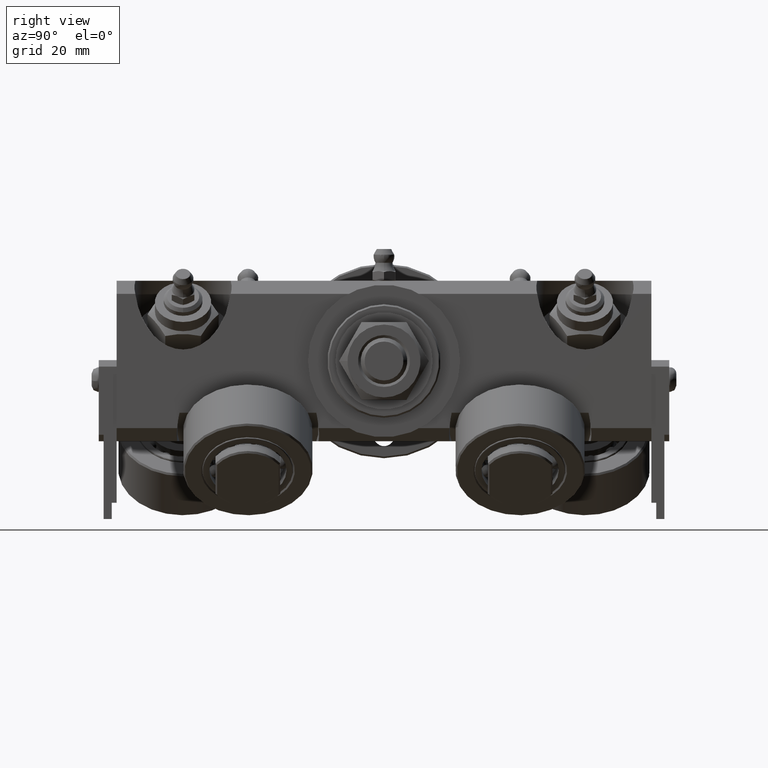
[diagram: clean part render]
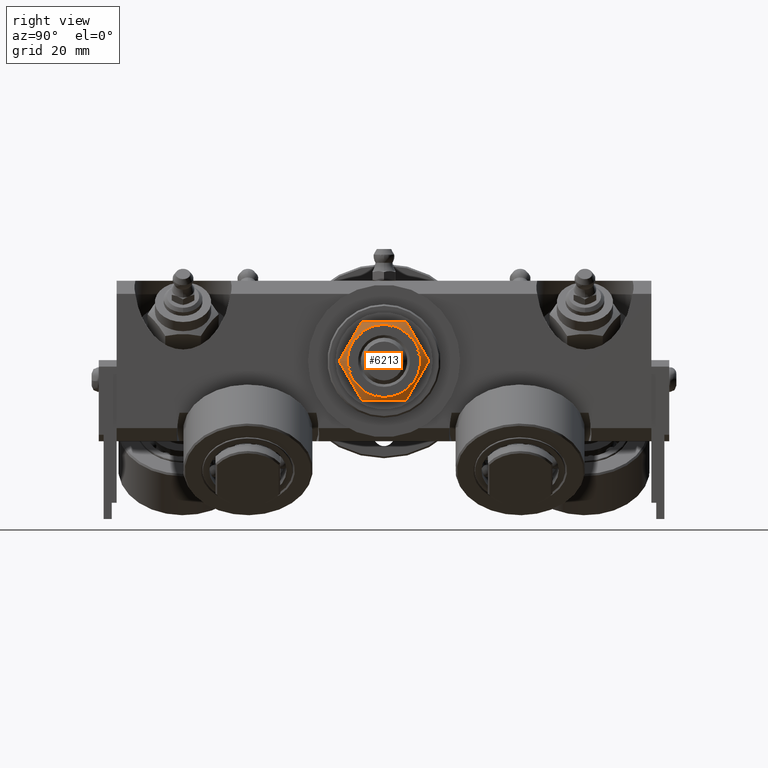
[diagram: same view with one face highlighted and labeled with its STEP entity id]
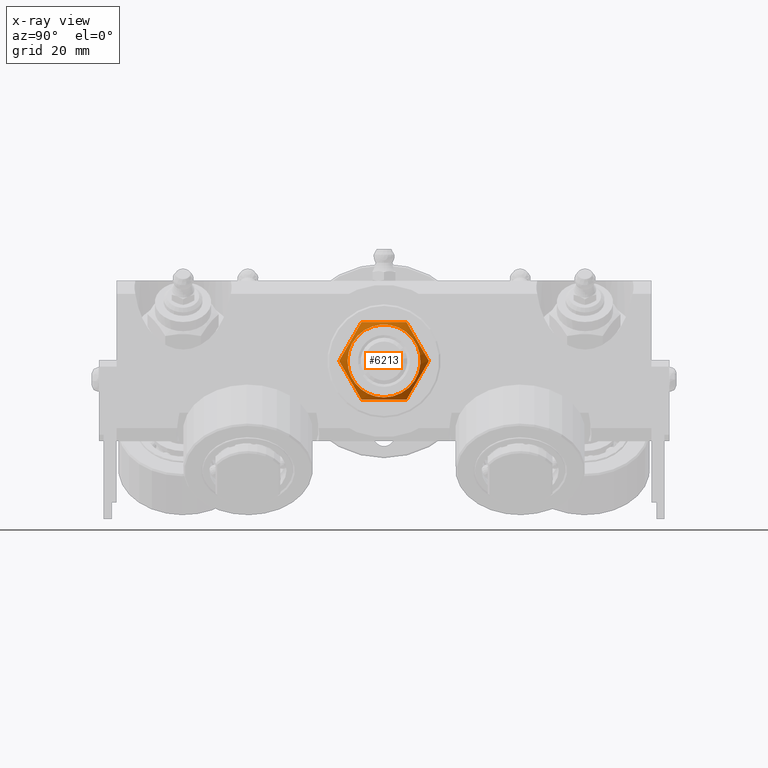
[diagram: x-ray of the same camera — body ghosted, the highlighted face saturated]
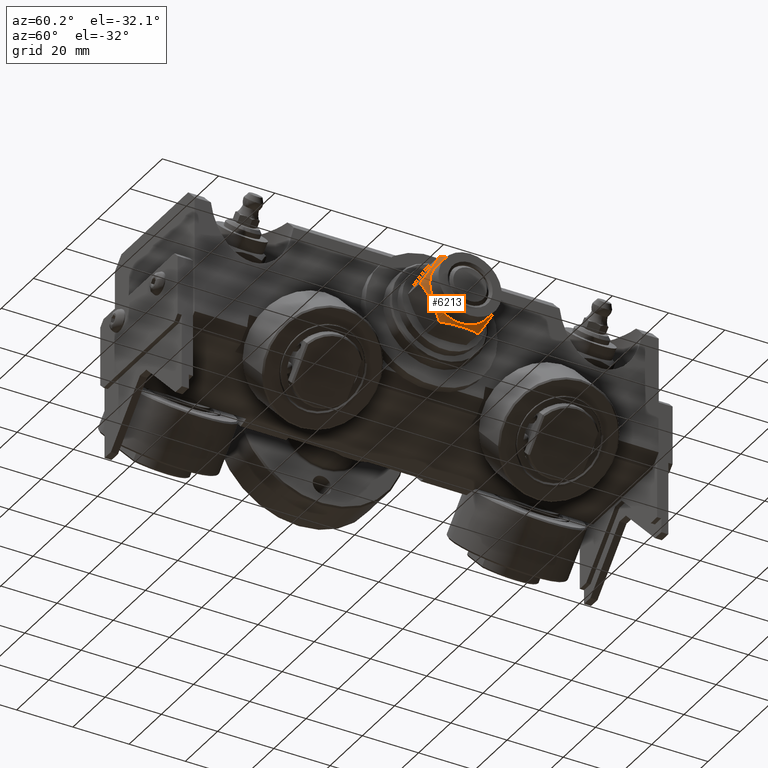
[diagram: same view with one face highlighted and labeled with its STEP entity id]
A machine part, right view. The second image highlights one B-rep face of the part: STEP entity #6213.
The next image is the same camera in x-ray: the body ghosted, the highlighted face saturated — about 0% of this face is hidden behind the body in this view.
A second angle (auxiliary view) of the same face is appended — the face is thin or edge-on in the first view.
In plain terms, the highlighted conical surface has half-angle 60 deg.
Its self-contained STEP definition (entity closure, byte-faithful):
#152=(
BOUNDED_CURVE()
B_SPLINE_CURVE(2,(#12617,#12618,#12619),.UNSPECIFIED.,.F.,.F.)
B_SPLINE_CURVE_WITH_KNOTS((3,3),(0.,1.4021233656935),.UNSPECIFIED.)
CURVE()
GEOMETRIC_REPRESENTATION_ITEM()
RATIONAL_B_SPLINE_CURVE((1.,1.15470053837926,1.))
REPRESENTATION_ITEM('')
);
#153=(
BOUNDED_CURVE()
B_SPLINE_CURVE(2,(#12621,#12622,#12623),.UNSPECIFIED.,.F.,.F.)
B_SPLINE_CURVE_WITH_KNOTS((3,3),(0.,1.4021233656935),.UNSPECIFIED.)
CURVE()
GEOMETRIC_REPRESENTATION_ITEM()
RATIONAL_B_SPLINE_CURVE((1.,1.15470053837925,1.))
REPRESENTATION_ITEM('')
);
#154=(
BOUNDED_CURVE()
B_SPLINE_CURVE(2,(#12625,#12626,#12627),.UNSPECIFIED.,.F.,.F.)
B_SPLINE_CURVE_WITH_KNOTS((3,3),(0.,1.4021233656935),.UNSPECIFIED.)
CURVE()
GEOMETRIC_REPRESENTATION_ITEM()
RATIONAL_B_SPLINE_CURVE((1.,1.15470053837924,1.))
REPRESENTATION_ITEM('')
);
#155=(
BOUNDED_CURVE()
B_SPLINE_CURVE(2,(#12629,#12630,#12631),.UNSPECIFIED.,.F.,.F.)
B_SPLINE_CURVE_WITH_KNOTS((3,3),(0.,1.4021233656935),.UNSPECIFIED.)
CURVE()
GEOMETRIC_REPRESENTATION_ITEM()
RATIONAL_B_SPLINE_CURVE((1.,1.15470053837925,1.))
REPRESENTATION_ITEM('')
);
#156=(
BOUNDED_CURVE()
B_SPLINE_CURVE(2,(#12633,#12634,#12635),.UNSPECIFIED.,.F.,.F.)
B_SPLINE_CURVE_WITH_KNOTS((3,3),(0.,1.4021233656935),.UNSPECIFIED.)
CURVE()
GEOMETRIC_REPRESENTATION_ITEM()
RATIONAL_B_SPLINE_CURVE((1.,1.15470053837925,1.))
REPRESENTATION_ITEM('')
);
#157=(
BOUNDED_CURVE()
B_SPLINE_CURVE(2,(#12636,#12637,#12638),.UNSPECIFIED.,.F.,.F.)
B_SPLINE_CURVE_WITH_KNOTS((3,3),(0.,1.4021233656935),.UNSPECIFIED.)
CURVE()
GEOMETRIC_REPRESENTATION_ITEM()
RATIONAL_B_SPLINE_CURVE((1.,1.15470053837925,1.))
REPRESENTATION_ITEM('')
);
#346=CONICAL_SURFACE('',#7299,12.5532032302755,1.0471975511966);
#891=FACE_OUTER_BOUND('',#1311,.T.);
#1311=EDGE_LOOP('',(#5362,#5363,#5364,#5365,#5366,#5367,#5368,#5369,#5370,
#5371));
#1702=CIRCLE('',#7300,11.25);
#1703=CIRCLE('',#7301,11.25);
#2084=LINE('',#12615,#2434);
#2434=VECTOR('',#8825,12.5532032302755);
#3020=VERTEX_POINT('',#12611);
#3021=VERTEX_POINT('',#12612);
#3022=VERTEX_POINT('',#12614);
#3023=VERTEX_POINT('',#12616);
#3024=VERTEX_POINT('',#12620);
#3025=VERTEX_POINT('',#12624);
#3026=VERTEX_POINT('',#12628);
#3027=VERTEX_POINT('',#12632);
#3828=EDGE_CURVE('',#3020,#3021,#1702,.T.);
#3829=EDGE_CURVE('',#3021,#3022,#2084,.T.);
#3830=EDGE_CURVE('',#3023,#3022,#152,.T.);
#3831=EDGE_CURVE('',#3024,#3023,#153,.T.);
#3832=EDGE_CURVE('',#3025,#3024,#154,.T.);
#3833=EDGE_CURVE('',#3026,#3025,#155,.T.);
#3834=EDGE_CURVE('',#3027,#3026,#156,.T.);
#3835=EDGE_CURVE('',#3022,#3027,#157,.T.);
#3836=EDGE_CURVE('',#3021,#3020,#1703,.T.);
#5362=ORIENTED_EDGE('',*,*,#3828,.T.);
#5363=ORIENTED_EDGE('',*,*,#3829,.T.);
#5364=ORIENTED_EDGE('',*,*,#3830,.F.);
#5365=ORIENTED_EDGE('',*,*,#3831,.F.);
#5366=ORIENTED_EDGE('',*,*,#3832,.F.);
#5367=ORIENTED_EDGE('',*,*,#3833,.F.);
#5368=ORIENTED_EDGE('',*,*,#3834,.F.);
#5369=ORIENTED_EDGE('',*,*,#3835,.F.);
#5370=ORIENTED_EDGE('',*,*,#3829,.F.);
#5371=ORIENTED_EDGE('',*,*,#3836,.T.);
#6213=ADVANCED_FACE('',(#891),#346,.T.);
#7299=AXIS2_PLACEMENT_3D('',#12610,#8821,#8822);
#7300=AXIS2_PLACEMENT_3D('',#12613,#8823,#8824);
#7301=AXIS2_PLACEMENT_3D('',#12639,#8826,#8827);
#8821=DIRECTION('center_axis',(-1.,0.,0.));
#8822=DIRECTION('ref_axis',(8.0141987273291E-17,1.,0.));
#8823=DIRECTION('center_axis',(-1.,0.,0.));
#8824=DIRECTION('ref_axis',(0.,0.,1.));
#8825=DIRECTION('',(-0.5,-0.866025403784439,1.06057523872491E-16));
#8826=DIRECTION('center_axis',(-1.,0.,0.));
#8827=DIRECTION('ref_axis',(0.,0.,1.));
#12610=CARTESIAN_POINT('Origin',(9.74759526419165,0.,0.));
#12611=CARTESIAN_POINT('',(10.5,1.37772764904077E-15,-11.25));
#12612=CARTESIAN_POINT('',(10.5,-11.25,1.37772764904077E-15));
#12613=CARTESIAN_POINT('Origin',(10.5,0.,0.));
#12614=CARTESIAN_POINT('',(8.99519052838329,-13.856406460551,-1.55431223447522E-14));
#12615=CARTESIAN_POINT('',(9.74759526419165,-12.5532032302755,1.53732401550031E-15));
#12616=CARTESIAN_POINT('',(8.99519052838329,-6.92820323027554,-12.));
#12617=CARTESIAN_POINT('Ctrl Pts',(8.99519052838329,-6.92820323027554,-12.));
#12618=CARTESIAN_POINT('Ctrl Pts',(10.9951905283833,-10.3923048454133,-6.));
#12619=CARTESIAN_POINT('Ctrl Pts',(8.99519052838329,-13.856406460551,-1.8382202385563E-14));
#12620=CARTESIAN_POINT('',(8.99519052838329,6.92820323027553,-12.));
#12621=CARTESIAN_POINT('Ctrl Pts',(8.99519052838329,6.92820323027546,-12.));
#12622=CARTESIAN_POINT('Ctrl Pts',(10.9951905283833,-1.72084568816899E-14,
-12.));
#12623=CARTESIAN_POINT('Ctrl Pts',(8.99519052838329,-6.92820323027549,-12.));
#12624=CARTESIAN_POINT('',(8.99519052838329,13.856406460551,0.));
#12625=CARTESIAN_POINT('Ctrl Pts',(8.99519052838329,13.856406460551,2.45096031807507E-15));
#12626=CARTESIAN_POINT('Ctrl Pts',(10.9951905283833,10.3923048454133,-5.99999999999999));
#12627=CARTESIAN_POINT('Ctrl Pts',(8.99519052838329,6.92820323027553,-12.));
#12628=CARTESIAN_POINT('',(8.99519052838329,6.92820323027552,12.));
#12629=CARTESIAN_POINT('Ctrl Pts',(8.99519052838329,6.92820323027551,12.));
#12630=CARTESIAN_POINT('Ctrl Pts',(10.9951905283833,10.3923048454133,6.));
#12631=CARTESIAN_POINT('Ctrl Pts',(8.99519052838329,13.856406460551,-8.57836111326274E-15));
#12632=CARTESIAN_POINT('',(8.99519052838329,-6.92820323027552,12.));
#12633=CARTESIAN_POINT('Ctrl Pts',(8.99519052838329,-6.92820323027552,12.));
#12634=CARTESIAN_POINT('Ctrl Pts',(10.9951905283833,0.,12.));
#12635=CARTESIAN_POINT('Ctrl Pts',(8.99519052838329,6.92820323027552,12.));
#12636=CARTESIAN_POINT('Ctrl Pts',(8.99519052838329,-13.856406460551,-9.80384127230027E-15));
#12637=CARTESIAN_POINT('Ctrl Pts',(10.9951905283833,-10.3923048454133,5.99999999999999));
#12638=CARTESIAN_POINT('Ctrl Pts',(8.99519052838329,-6.92820323027552,12.));
#12639=CARTESIAN_POINT('Origin',(10.5,0.,0.));